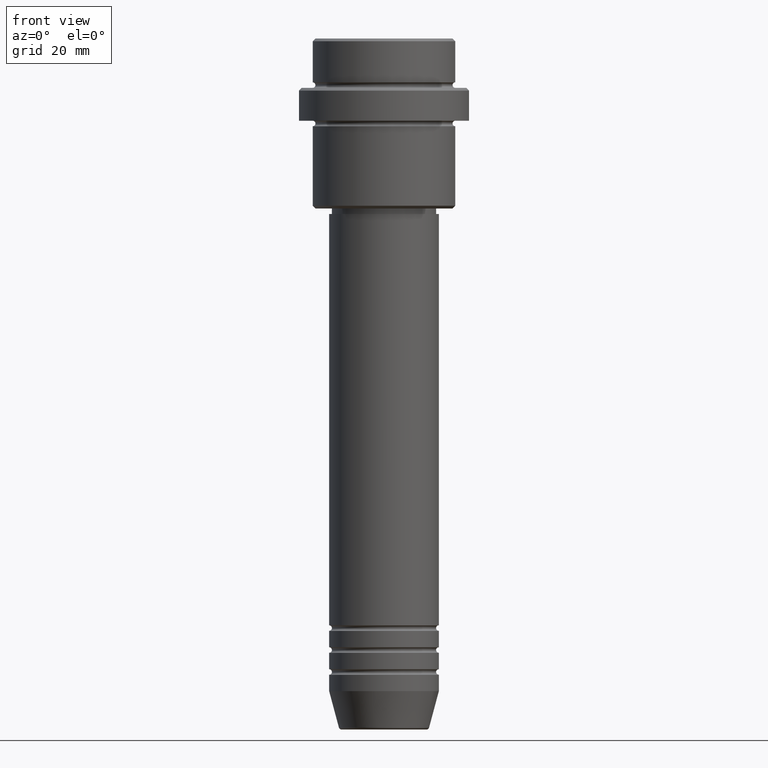
[diagram: clean part render]
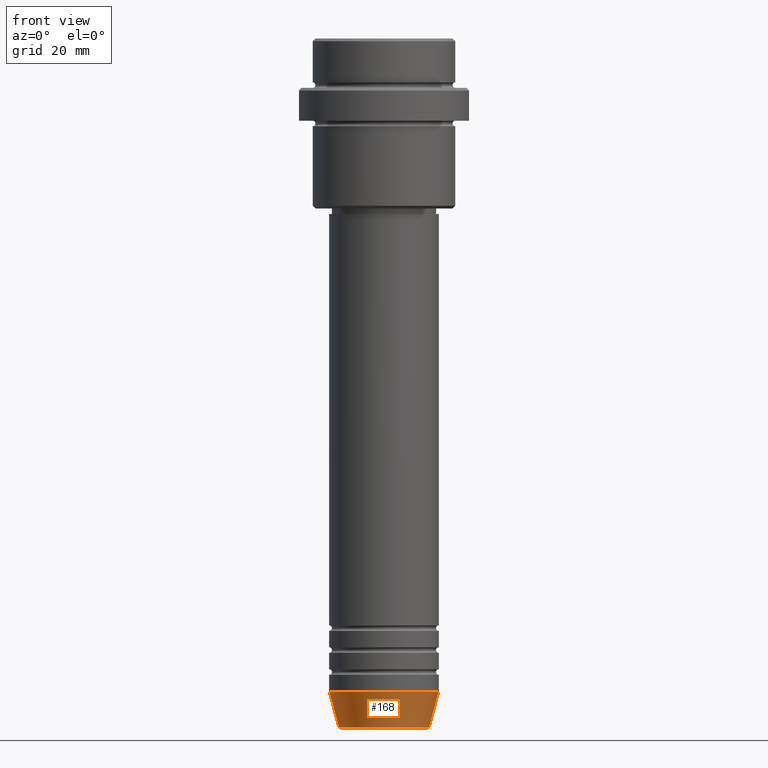
[diagram: same view with one face highlighted and labeled with its STEP entity id]
A machine part, front view. The second image highlights one B-rep face of the part: STEP entity #168.
In plain terms, the highlighted conical surface has half-angle 15 deg.
Its self-contained STEP definition (entity closure, byte-faithful):
#100 = ORIENTED_EDGE ( 'NONE', *, *, #329, .T. ) ;
#155 = ORIENTED_EDGE ( 'NONE', *, *, #157, .F. ) ;
#157 = EDGE_CURVE ( 'NONE', #1191, #247, #619, .T. ) ;
#168 = ADVANCED_FACE ( 'NONE', ( #334 ), #1057, .T. ) ;
#178 = VERTEX_POINT ( 'NONE', #1185 ) ;
#203 = CARTESIAN_POINT ( 'NONE',  ( 0.000000000000000000, 0.000000000000000000, -125.6294095225512564 ) ) ;
#208 = DIRECTION ( 'NONE',  ( -0.000000000000000000, -0.000000000000000000, 1.000000000000000000 ) ) ;
#240 = DIRECTION ( 'NONE',  ( 1.000000000000000000, 0.000000000000000000, 0.000000000000000000 ) ) ;
#247 = VERTEX_POINT ( 'NONE', #377 ) ;
#281 = CARTESIAN_POINT ( 'NONE',  ( 10.00000000000000000, 0.000000000000000000, -119.0000000000000000 ) ) ;
#329 = EDGE_CURVE ( 'NONE', #1242, #178, #1390, .T. ) ;
#334 = FACE_OUTER_BOUND ( 'NONE', #1041, .T. ) ;
#340 = DIRECTION ( 'NONE',  ( -0.000000000000000000, -0.000000000000000000, 1.000000000000000000 ) ) ;
#377 = CARTESIAN_POINT ( 'NONE',  ( 10.00000000000000000, 0.000000000000000000, -119.0000000000000000 ) ) ;
#386 = EDGE_CURVE ( 'NONE', #178, #247, #561, .T. ) ;
#427 = EDGE_CURVE ( 'NONE', #1242, #1191, #894, .T. ) ;
#432 = DIRECTION ( 'NONE',  ( 1.000000000000000000, 0.000000000000000000, 0.000000000000000000 ) ) ;
#437 = CARTESIAN_POINT ( 'NONE',  ( -8.223655072137187716, 1.115877042642911856E-15, -125.6294095225512564 ) ) ;
#455 = VECTOR ( 'NONE', #1267, 1000.000000000000000 ) ;
#561 = LINE ( 'NONE', #281, #932 ) ;
#603 = DIRECTION ( 'NONE',  ( 0.2588190451025213501, 0.000000000000000000, 0.9659258262890680902 ) ) ;
#619 = CIRCLE ( 'NONE', #1009, 10.00000000000000000 ) ;
#651 = DIRECTION ( 'NONE',  ( 1.000000000000000000, 0.000000000000000000, 0.000000000000000000 ) ) ;
#653 = DIRECTION ( 'NONE',  ( -0.000000000000000000, -0.000000000000000000, 1.000000000000000000 ) ) ;
#712 = CARTESIAN_POINT ( 'NONE',  ( 0.000000000000000000, 0.000000000000000000, -119.0000000000000000 ) ) ;
#732 = ORIENTED_EDGE ( 'NONE', *, *, #427, .F. ) ;
#894 = LINE ( 'NONE', #1210, #455 ) ;
#932 = VECTOR ( 'NONE', #603, 1000.000000000000000 ) ;
#1009 = AXIS2_PLACEMENT_3D ( 'NONE', #712, #340, #240 ) ;
#1041 = EDGE_LOOP ( 'NONE', ( #732, #100, #1090, #155 ) ) ;
#1057 = CONICAL_SURFACE ( 'NONE', #1169, 10.00000000000000000, 0.2617993877991500740 ) ;
#1081 = CARTESIAN_POINT ( 'NONE',  ( -10.00000000000000000, 1.224646799147353256E-15, -119.0000000000000000 ) ) ;
#1090 = ORIENTED_EDGE ( 'NONE', *, *, #386, .T. ) ;
#1169 = AXIS2_PLACEMENT_3D ( 'NONE', #1206, #653, #432 ) ;
#1185 = CARTESIAN_POINT ( 'NONE',  ( 8.223655072137187716, 0.000000000000000000, -125.6294095225512564 ) ) ;
#1191 = VERTEX_POINT ( 'NONE', #1081 ) ;
#1206 = CARTESIAN_POINT ( 'NONE',  ( 0.000000000000000000, 0.000000000000000000, -119.0000000000000000 ) ) ;
#1210 = CARTESIAN_POINT ( 'NONE',  ( -10.00000000000000000, 1.224646799147353256E-15, -119.0000000000000000 ) ) ;
#1242 = VERTEX_POINT ( 'NONE', #437 ) ;
#1267 = DIRECTION ( 'NONE',  ( -0.2588190451025213501, 3.169619151431772337E-17, 0.9659258262890680902 ) ) ;
#1304 = AXIS2_PLACEMENT_3D ( 'NONE', #203, #208, #651 ) ;
#1390 = CIRCLE ( 'NONE', #1304, 8.223655072137187716 ) ;